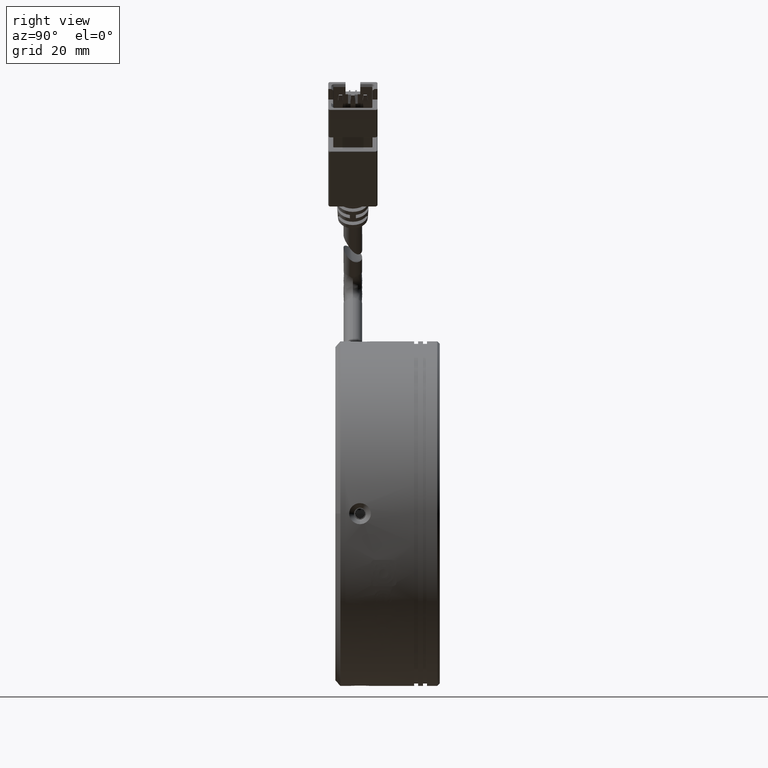
[diagram: clean part render]
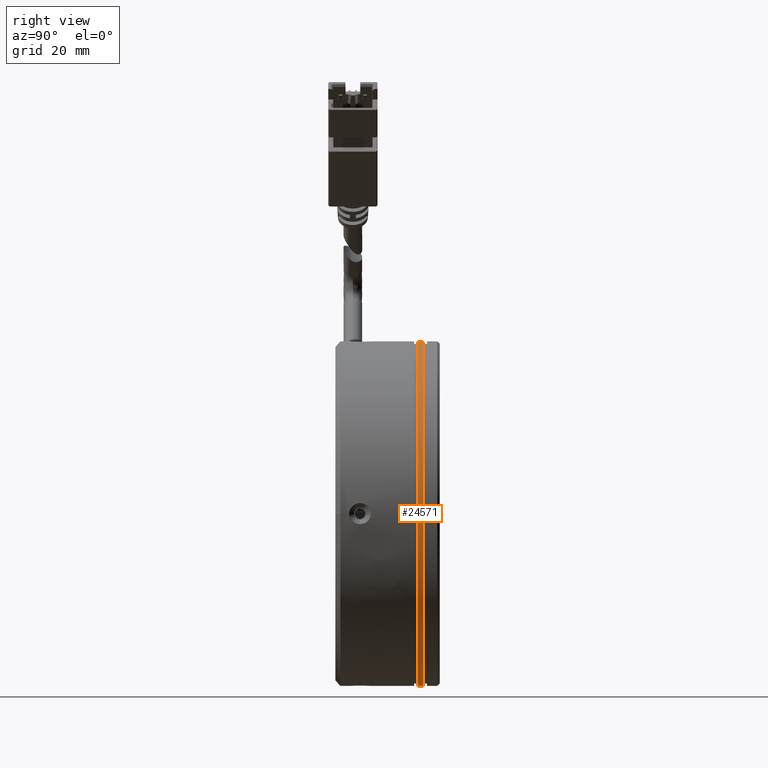
[diagram: same view with one face highlighted and labeled with its STEP entity id]
A machine part, right view. The second image highlights one B-rep face of the part: STEP entity #24571.
In plain terms, the highlighted cylindrical surface (partial cylindrical patch) has radius 35 mm, axis along (-0, -1, -0).
Its self-contained STEP definition (entity closure, byte-faithful):
#4508 = ORIENTED_EDGE ( 'NONE', *, *, #17613, .T. ) ;
#6582 = VERTEX_POINT ( 'NONE', #74967 ) ;
#11484 = CARTESIAN_POINT ( 'NONE',  ( -37.22376356038465400, -10.10550973775694800, 21.89757451504468500 ) ) ;
#13997 = AXIS2_PLACEMENT_3D ( 'NONE', #92461, #44276, #100526 ) ;
#16531 = VERTEX_POINT ( 'NONE', #96039 ) ;
#17613 = EDGE_CURVE ( 'NONE', #16531, #6582, #71288, .T. ) ;
#24331 = VERTEX_POINT ( 'NONE', #92918 ) ;
#24571 = ADVANCED_FACE ( 'NONE', ( #32510 ), #65248, .T. ) ;
#28058 = EDGE_CURVE ( 'NONE', #24331, #16531, #63593, .T. ) ;
#28515 = VECTOR ( 'NONE', #99791, 1000.000000000000000 ) ;
#29680 = AXIS2_PLACEMENT_3D ( 'NONE', #39117, #55672, #31701 ) ;
#30361 = EDGE_CURVE ( 'NONE', #6582, #57866, #63133, .T. ) ;
#30641 = CARTESIAN_POINT ( 'NONE',  ( -37.22376356038466100, -10.10550973775694800, -48.10242548495532600 ) ) ;
#31701 = DIRECTION ( 'NONE',  ( 0.0000000000000000000, 0.0000000000000000000, -1.000000000000000000 ) ) ;
#32510 = FACE_OUTER_BOUND ( 'NONE', #43021, .T. ) ;
#34653 = EDGE_CURVE ( 'NONE', #24331, #57866, #81210, .T. ) ;
#37067 = CARTESIAN_POINT ( 'NONE',  ( -37.22376356038466100, -9.936936790559604700, -13.10242548495532100 ) ) ;
#39117 = CARTESIAN_POINT ( 'NONE',  ( -37.22376356038466100, -10.10550973775694800, -13.10242548495532100 ) ) ;
#43021 = EDGE_LOOP ( 'NONE', ( #101692, #4508, #44417, #56733 ) ) ;
#44276 = DIRECTION ( 'NONE',  ( -0.0000000000000000000, -1.000000000000000000, -0.0000000000000000000 ) ) ;
#44417 = ORIENTED_EDGE ( 'NONE', *, *, #30361, .T. ) ;
#45150 = DIRECTION ( 'NONE',  ( 0.0000000000000000000, 0.0000000000000000000, -1.000000000000000000 ) ) ;
#55672 = DIRECTION ( 'NONE',  ( -0.0000000000000000000, -1.000000000000000000, -0.0000000000000000000 ) ) ;
#56733 = ORIENTED_EDGE ( 'NONE', *, *, #34653, .F. ) ;
#57866 = VERTEX_POINT ( 'NONE', #103177 ) ;
#59831 = VECTOR ( 'NONE', #79151, 1000.000000000000000 ) ;
#63133 = CIRCLE ( 'NONE', #66301, 35.00000000000000000 ) ;
#63593 = CIRCLE ( 'NONE', #13997, 35.00000000000000000 ) ;
#65248 = CYLINDRICAL_SURFACE ( 'NONE', #29680, 35.00000000000000000 ) ;
#66301 = AXIS2_PLACEMENT_3D ( 'NONE', #37067, #93350, #45150 ) ;
#71288 = LINE ( 'NONE', #11484, #28515 ) ;
#74967 = CARTESIAN_POINT ( 'NONE',  ( -37.22376356038465400, -9.936936790559604700, 21.89757451504468500 ) ) ;
#79151 = DIRECTION ( 'NONE',  ( -0.0000000000000000000, -1.000000000000000000, -0.0000000000000000000 ) ) ;
#81210 = LINE ( 'NONE', #30641, #59831 ) ;
#92461 = CARTESIAN_POINT ( 'NONE',  ( -37.22376356038466100, -8.936936790559604700, -13.10242548495532100 ) ) ;
#92918 = CARTESIAN_POINT ( 'NONE',  ( -37.22376356038466100, -8.936936790559604700, -48.10242548495532600 ) ) ;
#93350 = DIRECTION ( 'NONE',  ( 0.0000000000000000000, 1.000000000000000000, 0.0000000000000000000 ) ) ;
#96039 = CARTESIAN_POINT ( 'NONE',  ( -37.22376356038465400, -8.936936790559604700, 21.89757451504468500 ) ) ;
#99791 = DIRECTION ( 'NONE',  ( -0.0000000000000000000, -1.000000000000000000, -0.0000000000000000000 ) ) ;
#100526 = DIRECTION ( 'NONE',  ( 0.0000000000000000000, 0.0000000000000000000, -1.000000000000000000 ) ) ;
#101692 = ORIENTED_EDGE ( 'NONE', *, *, #28058, .T. ) ;
#103177 = CARTESIAN_POINT ( 'NONE',  ( -37.22376356038466100, -9.936936790559604700, -48.10242548495532600 ) ) ;